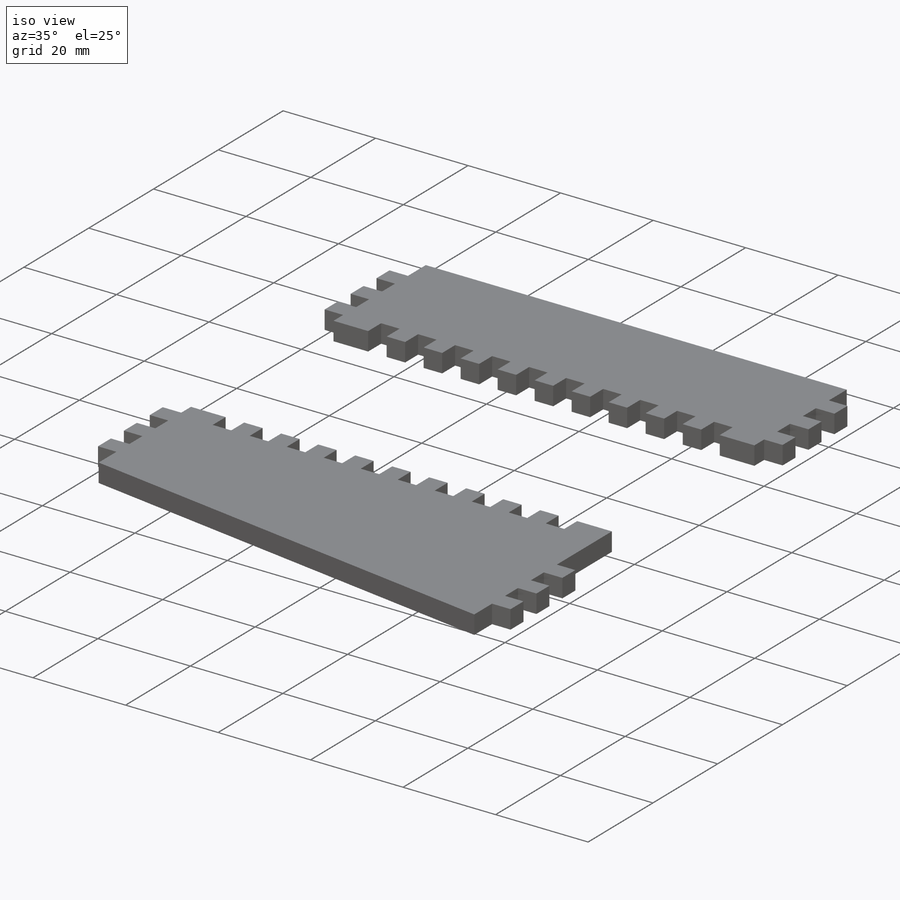
[diagram: iso view]
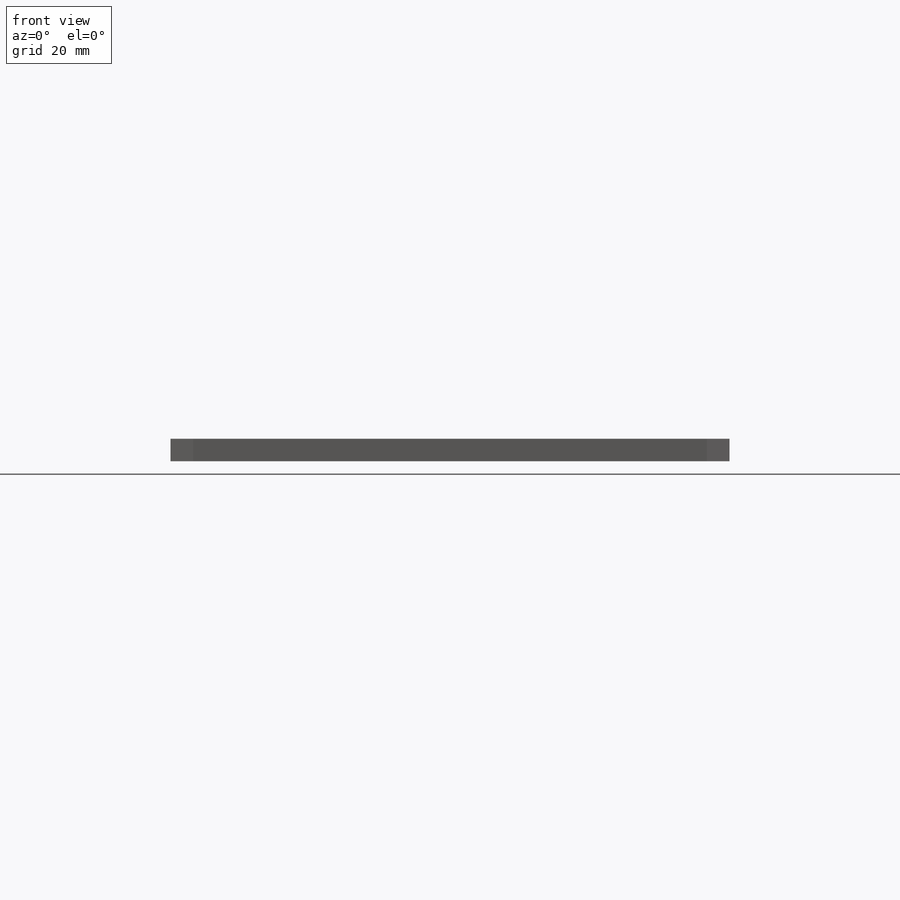
[diagram: front view]
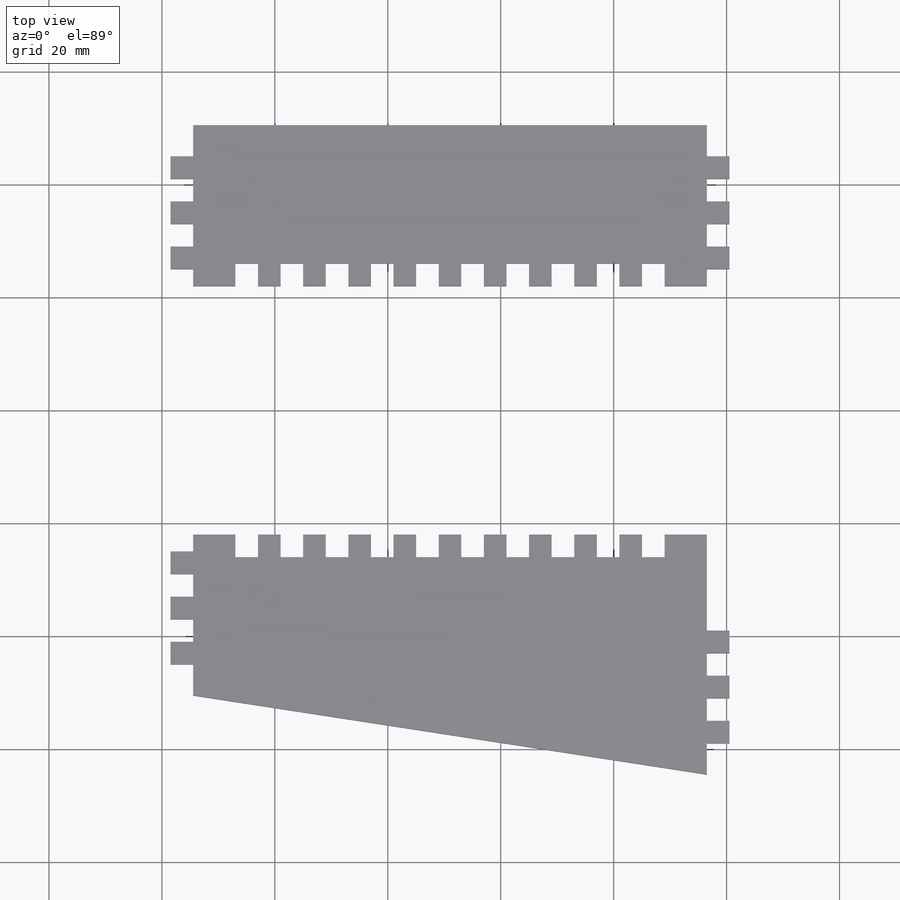
[diagram: top view]
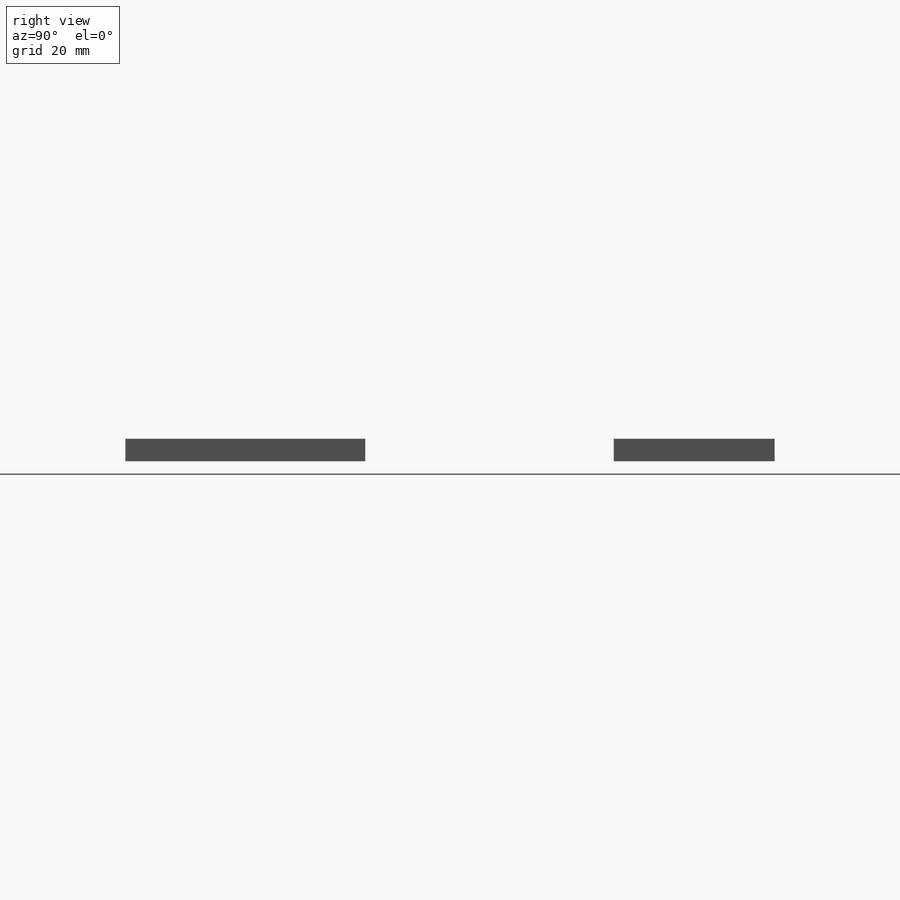
[diagram: right view]
SOLIDWORKS PART (.sldprt)
format: sldprt  version: not decoded by parser v0  size: 592,896 bytes
history: native  units: mm
features: sketch x3, cut_extrude x2, material x1, extrude x1 (+13 scaffold rows collapsed)
feature tree (20):
  scaffold x13  (default folders/planes/origin — collapsed)
  material  "Cedar"
  sketch  "Sketch1"  dims[c1.D1=2.0mm c1.D2=4.0mm c1.D3=4.0mm c1.D4=4.0mm c1.D5=15.5mm c1.D6=91.0mm c1.D7=100.0mm c1.D8=1300.0mm c1.D9=300.0mm c1.D10=1300.0mm c2.D10=~98.746162deg c2.D11=7.0mm c2.D12=91.0mm c2.D13=600.0mm c2.D14=600.0mm c2.D15=~101.846154mm c2.D16=~117.076923mm c3.D15=~101.076923mm c3.D17=35.0mm c3.D18=50.5mm c3.D5=4.0mm c3.D19=4.0mm c3.D20=4.0mm c3.D21=38.75mm c3.D22=4.0mm c3.D23=4.0mm c3.D24=4.0mm c3.D25=4.0mm c3.D26=4.0mm c3.D27=7.0mm c4.D21=38.75mm c4.D28=115.0mm c5.D21=35.0mm c5.D28=15.5mm c6.D21=15.5mm c6.D28=4.0mm c6.D29=100.0mm c6.D30=300.0mm c6.D31=~146.923077mm c6.D32=325.0mm c6.D33=325.0mm c6.D34=~196.923077mm c6.D35=~246.153846mm c6.D36=200.0mm c6.D37=200.0mm c6.D38=300.0mm c6.D39=200.0mm c7.D38=300.0mm c7.D39=200.0mm c8.D38=302.0mm c8.D39=200.0mm c8.D40=300.0mm c8.D41=57.5mm c8.D42=57.5mm c8.D43=~130.796154mm c8.D44=~158.403846mm c8.D45=~204.653846mm c8.D46=~250.192308mm c8.D47=4.0mm c8.D12=100.0mm c8.D30=4.0mm c8.D48=190.0mm c8.D32=4.0mm c8.D49=321.0mm c8.D33=4.0mm c8.D50=321.0mm c8.D51=4.0mm c8.D52=346.0mm c8.D8=346.0mm c8.D36=4.0mm c8.D37=196.0mm c9.D52=4.0mm c9.D53=196.0mm c9.D54=4.0mm c9.D55=192.0mm c9.D56=300.0mm c9.D13=4.0mm c10.D56=600.0mm c10.D57=1300.0mm c10.D58=6.0mm c10.D59=6.0mm c10.D60=4.0mm c10.D61=4.0mm c10.D14=292.0mm c10.D62=600.0mm c10.D63=300.0mm c10.D64=158.0mm c10.D65=16.0mm c11.D64=156.0mm c11.D63=300.0mm c12.D64=153.12mm c12.D10=~115.996154mm c12.D50=57.5mm c12.D43=~130.796154mm c13.D50=104.0mm c13.D65=194.0mm c13.D66=325.0mm c13.D67=320.0mm c13.D68=350.0mm c13.D69=316.0mm c13.D70=57.5mm c13.D39=198.0mm c13.D14=290.0mm]
  extrude  "Boss-Extrude1"  Depth=4mm
  sketch  "Sketch4"  dims[D1=22.0mm D2=22.0mm]
  cut_extrude  "Cut-Extrude1"  Depth=4mm
  sketch  "Sketch5"  dims[c1.D1=2.0mm c1.D2=4.0mm c1.D3=4.0mm c1.D4=4.0mm c1.D6=6.0mm c1.D7=24.5mm c2.D6=24.5mm c2.D5=5.0]
  cut_extrude  "Cut-Extrude3"  Depth=4mm
decode coverage: 6 of 6 modeling features carry decoded parameters
note: ~ marks probable driven/reference dimensions
note: suppression state not decoded; provenance and decode notes live in map.json
